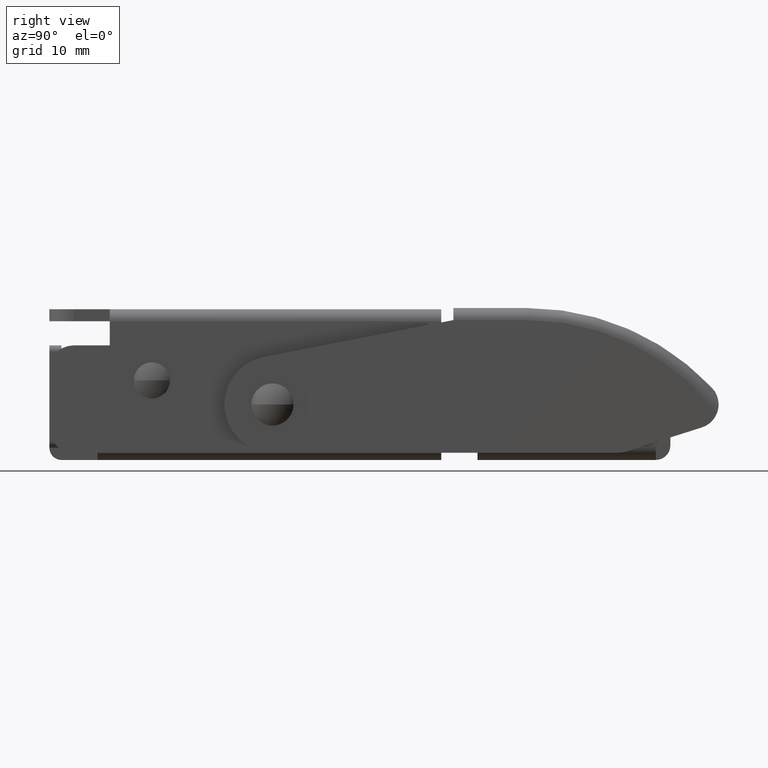
[diagram: clean part render]
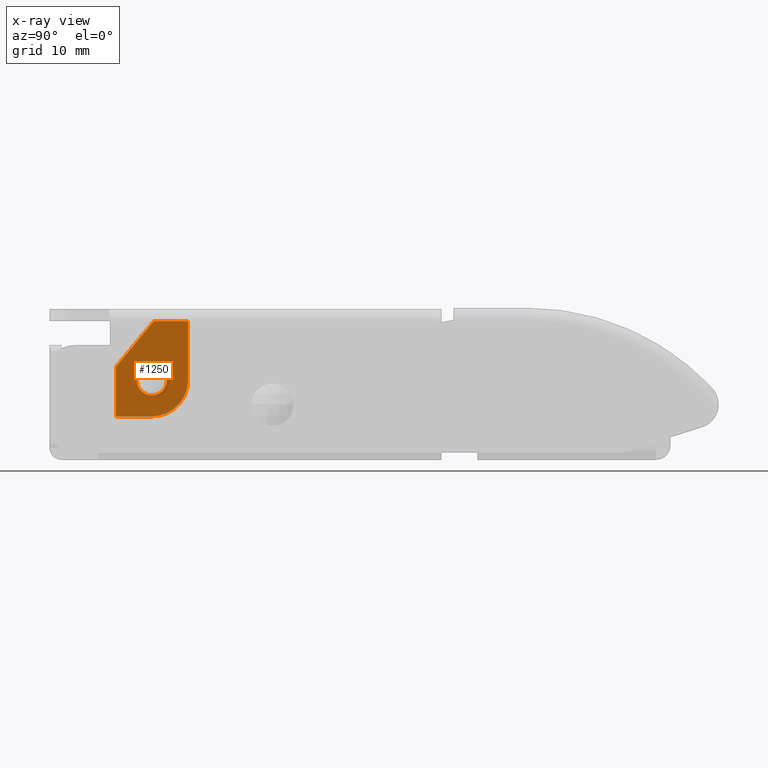
[diagram: x-ray — body ghosted, one internal face saturated and labeled with its STEP entity id]
A machine part, right view, then the same camera in x-ray: the body is ghosted and one INTERNAL B-rep face — a face not visible from any outside direction — is saturated and labeled: STEP entity #1250.
In plain terms, the highlighted planar face has unit normal (-1, 0, 0).
Its self-contained STEP definition (entity closure, byte-faithful):
#10 = DIRECTION ( 'NONE',  ( -1.000000000000000000, 0.0000000000000000000, 0.0000000000000000000 ) ) ;
#30 = VECTOR ( 'NONE', #6361, 1000.000000000000000 ) ;
#42 = CIRCLE ( 'NONE', #5715, 1.250000000000001100 ) ;
#422 = EDGE_LOOP ( 'NONE', ( #4377, #3701, #4803, #6677, #6825, #2721 ) ) ;
#520 = EDGE_CURVE ( 'NONE', #2624, #4654, #3207, .T. ) ;
#593 = ORIENTED_EDGE ( 'NONE', *, *, #5493, .F. ) ;
#633 = DIRECTION ( 'NONE',  ( 0.0000000000000000000, 6.672013369141566200E-016, 1.000000000000000000 ) ) ;
#698 = PLANE ( 'NONE',  #4510 ) ;
#756 = DIRECTION ( 'NONE',  ( -1.000000000000000000, 0.0000000000000000000, 0.0000000000000000000 ) ) ;
#809 = CARTESIAN_POINT ( 'NONE',  ( -7.500000000000000000, -23.80000000000000100, -3.149999999999999900 ) ) ;
#1046 = EDGE_CURVE ( 'NONE', #4654, #5500, #3189, .T. ) ;
#1185 = DIRECTION ( 'NONE',  ( 0.0000000000000000000, -0.6383358695945248200, -0.7697579603933965000 ) ) ;
#1250 = ADVANCED_FACE ( 'NONE', ( #7595, #3074 ), #698, .T. ) ;
#1312 = CARTESIAN_POINT ( 'NONE',  ( -7.500000000000000000, -20.00000000000000000, -0.1500000000000008300 ) ) ;
#1337 = DIRECTION ( 'NONE',  ( 0.0000000000000000000, 0.0000000000000000000, -1.000000000000000000 ) ) ;
#1370 = ORIENTED_EDGE ( 'NONE', *, *, #5840, .F. ) ;
#1742 = EDGE_LOOP ( 'NONE', ( #593, #1370 ) ) ;
#1937 = CARTESIAN_POINT ( 'NONE',  ( -7.500000000000000000, -23.00000000000000400, 0.9499999999999995100 ) ) ;
#2004 = VERTEX_POINT ( 'NONE', #7804 ) ;
#2102 = AXIS2_PLACEMENT_3D ( 'NONE', #4452, #756, #5077 ) ;
#2192 = AXIS2_PLACEMENT_3D ( 'NONE', #6699, #3013, #6601 ) ;
#2203 = EDGE_CURVE ( 'NONE', #5500, #3059, #6331, .T. ) ;
#2269 = CIRCLE ( 'NONE', #2102, 1.250000000000001100 ) ;
#2480 = CARTESIAN_POINT ( 'NONE',  ( -7.500000000000000000, -17.00000000000000000, -0.1500000000000010200 ) ) ;
#2624 = VERTEX_POINT ( 'NONE', #6826 ) ;
#2677 = VERTEX_POINT ( 'NONE', #1937 ) ;
#2721 = ORIENTED_EDGE ( 'NONE', *, *, #1046, .F. ) ;
#2880 = LINE ( 'NONE', #4905, #4297 ) ;
#3013 = DIRECTION ( 'NONE',  ( 1.000000000000000000, -0.0000000000000000000, -0.0000000000000000000 ) ) ;
#3059 = VERTEX_POINT ( 'NONE', #3809 ) ;
#3074 = FACE_BOUND ( 'NONE', #1742, .T. ) ;
#3189 = CIRCLE ( 'NONE', #2192, 2.999999999999999100 ) ;
#3207 = LINE ( 'NONE', #809, #6477 ) ;
#3339 = LINE ( 'NONE', #5758, #30 ) ;
#3519 = VERTEX_POINT ( 'NONE', #4190 ) ;
#3701 = ORIENTED_EDGE ( 'NONE', *, *, #5888, .T. ) ;
#3724 = CARTESIAN_POINT ( 'NONE',  ( -7.499999999999999100, -20.00000000000000000, -0.1500000000000034400 ) ) ;
#3809 = CARTESIAN_POINT ( 'NONE',  ( -7.500000000000000000, -16.99999999999999600, 4.749999999999999100 ) ) ;
#3869 = CARTESIAN_POINT ( 'NONE',  ( -7.499999999999999100, -20.00000000000000000, 1.099999999999997600 ) ) ;
#3884 = VECTOR ( 'NONE', #7743, 1000.000000000000000 ) ;
#4190 = CARTESIAN_POINT ( 'NONE',  ( -7.499999999999999100, -20.00000000000000000, -1.400000000000004600 ) ) ;
#4297 = VECTOR ( 'NONE', #1185, 1000.000000000000100 ) ;
#4325 = DIRECTION ( 'NONE',  ( 0.0000000000000000000, 0.0000000000000000000, 1.000000000000000000 ) ) ;
#4377 = ORIENTED_EDGE ( 'NONE', *, *, #520, .F. ) ;
#4406 = DIRECTION ( 'NONE',  ( -1.000000000000000000, 0.0000000000000000000, 0.0000000000000000000 ) ) ;
#4452 = CARTESIAN_POINT ( 'NONE',  ( -7.499999999999999100, -20.00000000000000000, -0.1500000000000034400 ) ) ;
#4510 = AXIS2_PLACEMENT_3D ( 'NONE', #1312, #4406, #1337 ) ;
#4654 = VERTEX_POINT ( 'NONE', #6013 ) ;
#4748 = EDGE_CURVE ( 'NONE', #2004, #2677, #2880, .T. ) ;
#4803 = ORIENTED_EDGE ( 'NONE', *, *, #4748, .F. ) ;
#4905 = CARTESIAN_POINT ( 'NONE',  ( -7.500000000000000000, -23.00000000000000400, 0.9499999999999995100 ) ) ;
#5077 = DIRECTION ( 'NONE',  ( 0.0000000000000000000, 0.0000000000000000000, 1.000000000000000000 ) ) ;
#5129 = DIRECTION ( 'NONE',  ( 0.0000000000000000000, 1.000000000000000000, 0.0000000000000000000 ) ) ;
#5493 = EDGE_CURVE ( 'NONE', #6399, #3519, #42, .T. ) ;
#5500 = VERTEX_POINT ( 'NONE', #2480 ) ;
#5506 = LINE ( 'NONE', #5881, #3884 ) ;
#5715 = AXIS2_PLACEMENT_3D ( 'NONE', #3724, #10, #4325 ) ;
#5758 = CARTESIAN_POINT ( 'NONE',  ( -7.500000000000000000, -23.00000000000000400, -0.1500000000000008300 ) ) ;
#5840 = EDGE_CURVE ( 'NONE', #3519, #6399, #2269, .T. ) ;
#5881 = CARTESIAN_POINT ( 'NONE',  ( -7.500000000000000000, 4.000000000000000000, 4.750000000000001800 ) ) ;
#5888 = EDGE_CURVE ( 'NONE', #2624, #2677, #3339, .T. ) ;
#6013 = CARTESIAN_POINT ( 'NONE',  ( -7.500000000000000000, -20.00000000000000000, -3.149999999999999900 ) ) ;
#6331 = LINE ( 'NONE', #6785, #7782 ) ;
#6361 = DIRECTION ( 'NONE',  ( -0.0000000000000000000, -0.0000000000000000000, 1.000000000000000000 ) ) ;
#6399 = VERTEX_POINT ( 'NONE', #3869 ) ;
#6477 = VECTOR ( 'NONE', #5129, 1000.000000000000000 ) ;
#6601 = DIRECTION ( 'NONE',  ( 0.0000000000000000000, 0.0000000000000000000, -1.000000000000000000 ) ) ;
#6677 = ORIENTED_EDGE ( 'NONE', *, *, #7784, .T. ) ;
#6699 = CARTESIAN_POINT ( 'NONE',  ( -7.500000000000000000, -20.00000000000000000, -0.1500000000000008300 ) ) ;
#6785 = CARTESIAN_POINT ( 'NONE',  ( -7.500000000000000000, -17.00000000000000000, -0.1500000000000008300 ) ) ;
#6825 = ORIENTED_EDGE ( 'NONE', *, *, #2203, .F. ) ;
#6826 = CARTESIAN_POINT ( 'NONE',  ( -7.500000000000000000, -23.00000000000000400, -3.149999999999999900 ) ) ;
#7595 = FACE_OUTER_BOUND ( 'NONE', #422, .T. ) ;
#7743 = DIRECTION ( 'NONE',  ( 0.0000000000000000000, 1.000000000000000000, 1.334402673828313300E-016 ) ) ;
#7782 = VECTOR ( 'NONE', #633, 1000.000000000000000 ) ;
#7784 = EDGE_CURVE ( 'NONE', #2004, #3059, #5506, .T. ) ;
#7804 = CARTESIAN_POINT ( 'NONE',  ( -7.500000000000000000, -19.84878048780488100, 4.749999999999997300 ) ) ;